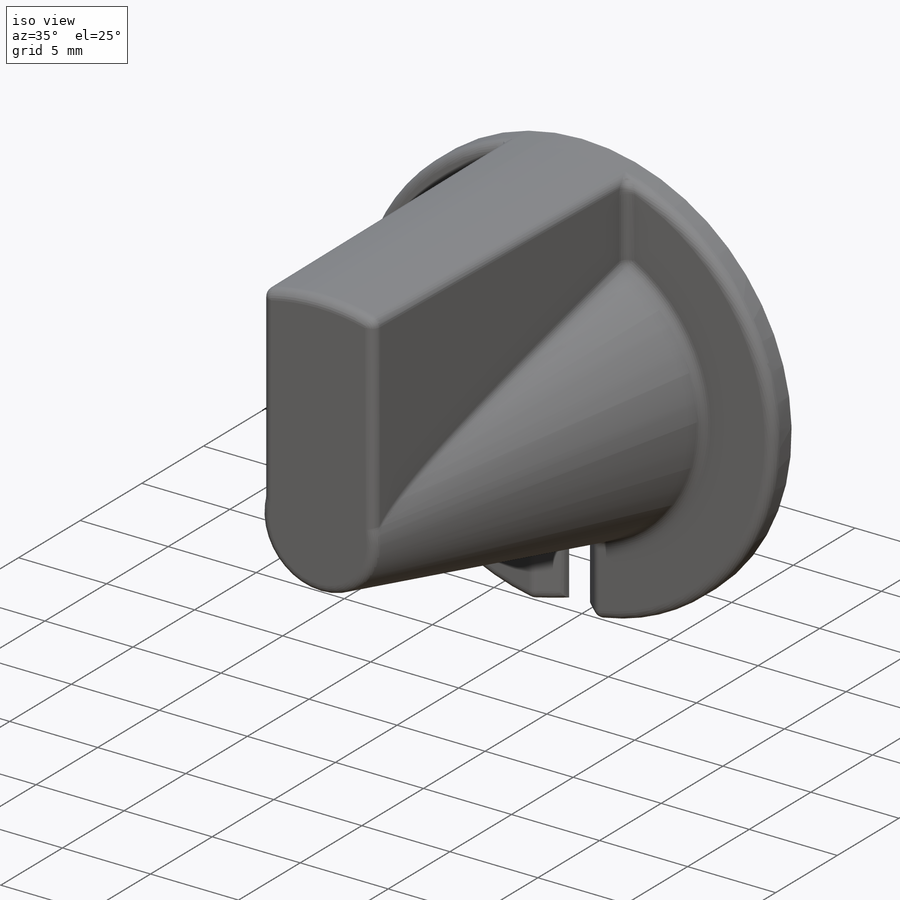
[diagram: iso view]
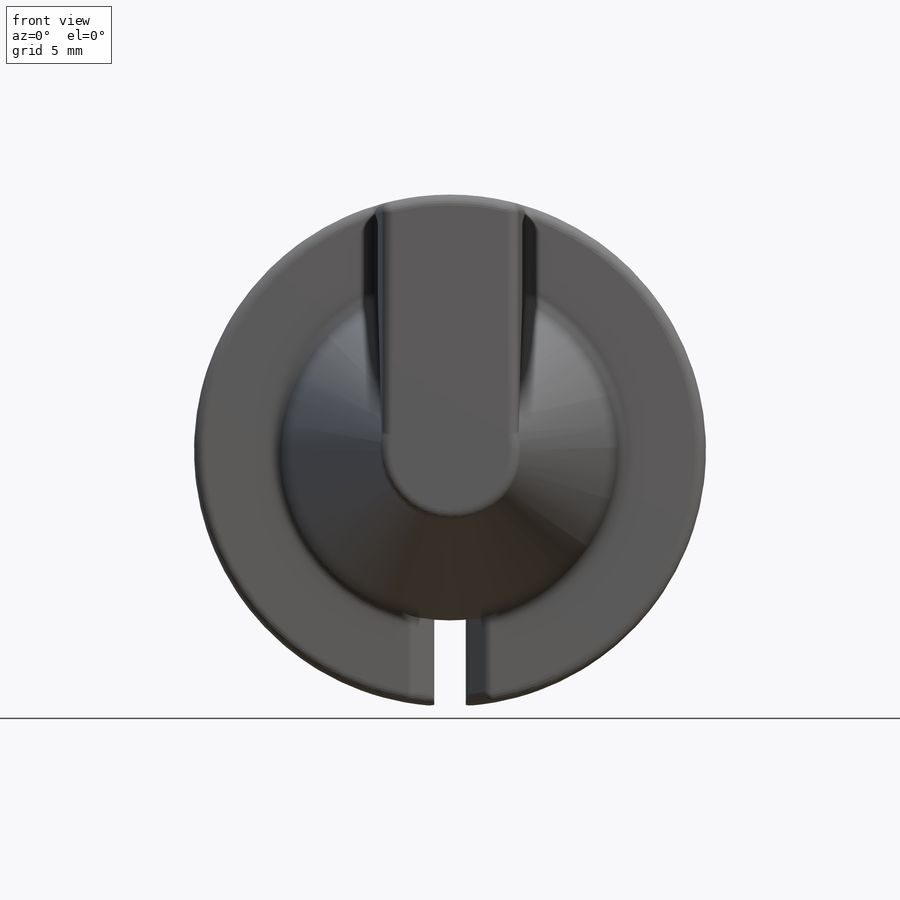
[diagram: front view]
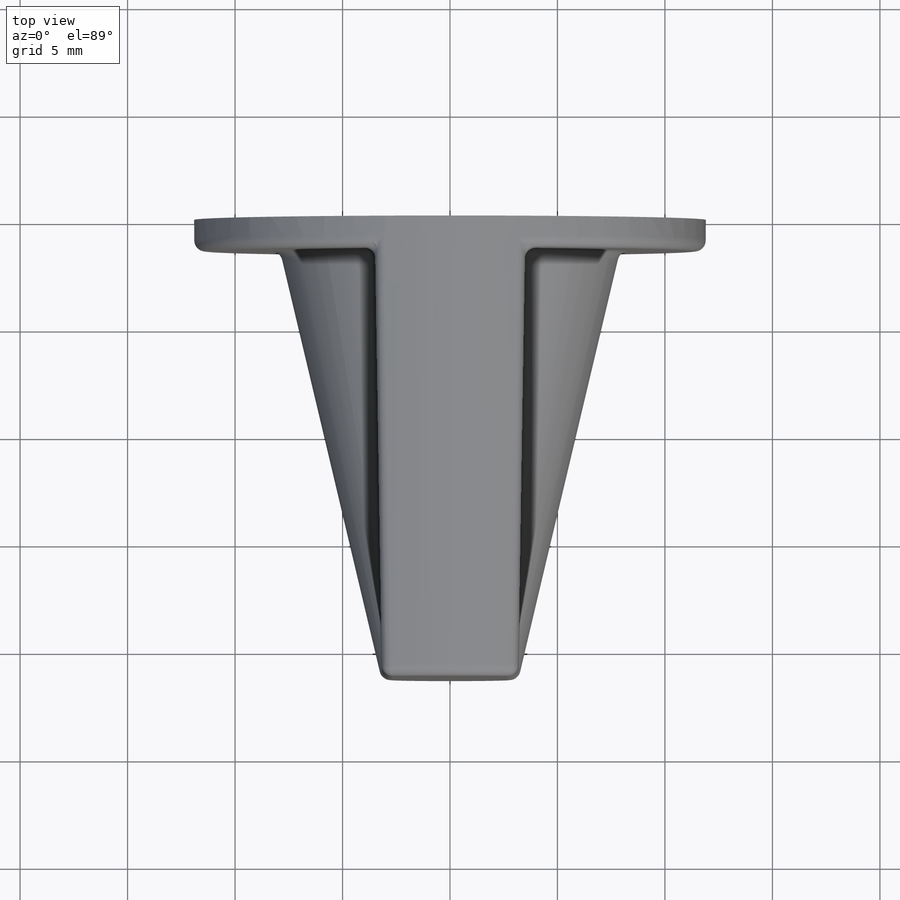
[diagram: top view]
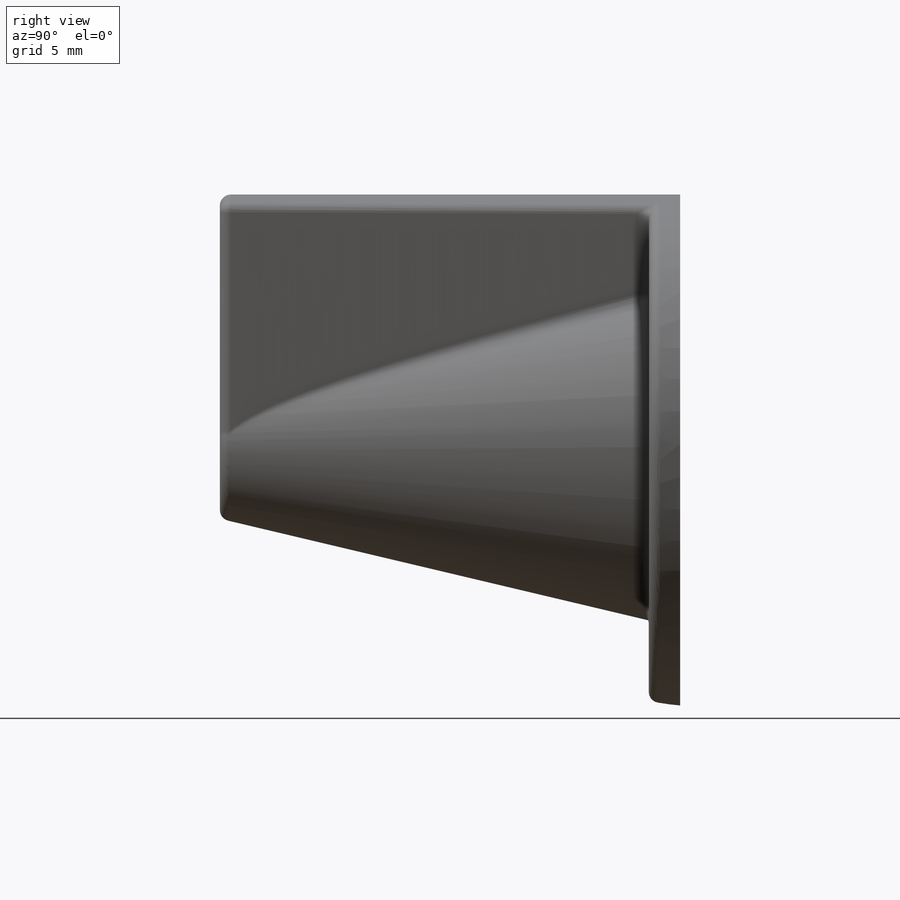
[diagram: right view]
SOLIDWORKS PART (.sldprt)
format: sldprt  version: not decoded by parser v0  size: 449,536 bytes
history: native  units: mm
features: sketch x7, extrude x3, fillet x3, material x1, cut_extrude x1, chamfer x1 (+16 scaffold rows collapsed)
feature tree (32):
  scaffold x16  (default folders/planes/origin — collapsed)
  material  "Zinc AC41A Alloy, As Cast"
  sketch  "Sketch1"  dims[D1=23.8125mm]
  extrude  "Extrude1"  Depth=1.4605mm
  sketch  "Sketch2"  dims[D1=15.8115mm]
  sketch  "Sketch3"  dims[D1=6.35mm]
  extrude  "Extrude2"  Depth=21.4122mm
  sketch  "Sketch5"
  sketch  "Sketch6"  dims[D1=3.4925mm D2=3.4925mm D3=0.0mm]
  sketch  "Sketch8"  dims[D1=3.175mm D2=3.175mm D3=0.0mm]
  extrude  "Loft2"  [1 undecoded]
  sketch  "Sketch9"  dims[D1=~0.73025mm D2=~0.73025mm D3=0.0mm D4=0.0mm]
  cut_extrude  "Extrude3"  [1 undecoded]
  chamfer  "Chamfer1"  Distance=1.016mm Angle=45deg
  fillet  "Fillet2"  Radius=0.508mm
  fillet  "Fillet4"  Radius=0.508mm
  fillet  "Fillet5"  Radius=0.508mm
decode coverage: 12 of 15 modeling features carry decoded parameters
note: ~ marks probable driven/reference dimensions
note: 2 parameter values undecoded
note: suppression state not decoded; provenance and decode notes live in map.json
